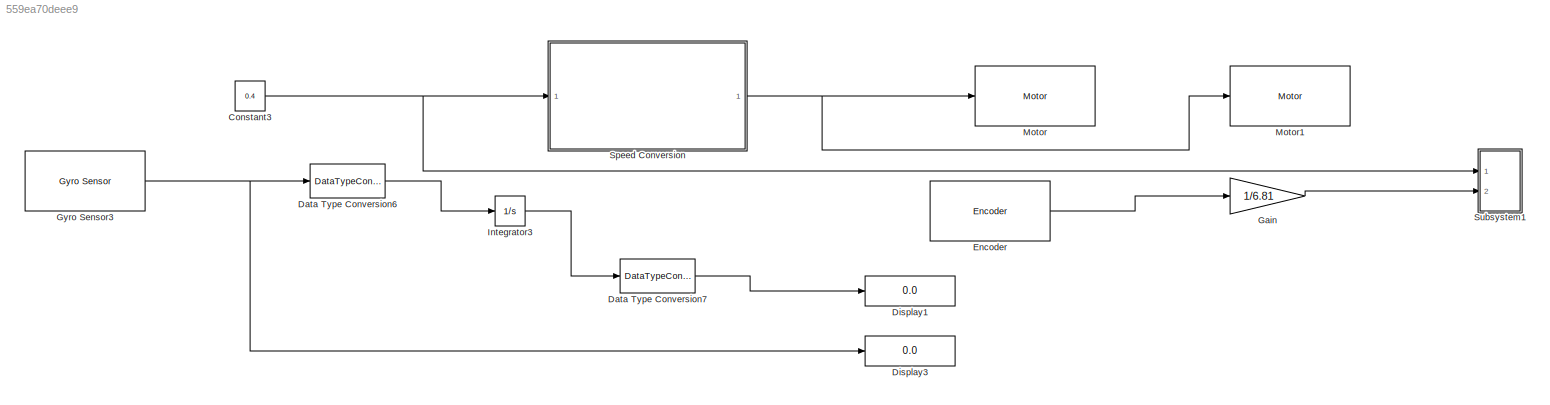
MODEL slx_559ea70deee9
KIND model
CONFIG AbsTol = auto
CONFIG FixedStep = auto
CONFIG MaxStep = auto
CONFIG MinStep = auto
CONFIG RelTol = 1e-3
CONFIG SampleTimeConstraint = Unconstrained
CONFIG Solver = FixedStepAuto
CONFIG SolverMode = Auto
CONFIG SolverName = FixedStepAuto
CONFIG StartTime = 0.0
CONFIG StopTime = 10
BLOCK [Constant] Constant3
  Value = 0.4
BLOCK [DataTypeConversion] Data Type Conversion6
  OutDataTypeStr = double
  RndMeth = Ceiling
  SaturateOnIntegerOverflow = off
BLOCK [DataTypeConversion] Data Type Conversion7
  OutDataTypeStr = int32
  RndMeth = Ceiling
  SaturateOnIntegerOverflow = off
BLOCK [Display] Display1
  Decimation = 1
  Format = long
  Ports = [1]
BLOCK [Display] Display3
  Decimation = 1
  Format = long
  Ports = [1]
BLOCK [Reference] Encoder  REF=legoev3lib/Encoder
  Ports = [0, 1]
  SourceBlock = legoev3lib/Encoder
  SourceType = LEGO MINDSTORMS EV3 Encoder
BLOCK [Gain] Gain
  Gain = 1/6.81
  OutDataTypeStr = Inherit: Inherit via internal rule
  ParamDataTypeStr = Inherit: Inherit via internal rule
  SaturateOnIntegerOverflow = off
BLOCK [Reference] Gyro Sensor3  REF=legoev3lib/Gyro Sensor
  Ports = [0, 1]
  SourceBlock = legoev3lib/Gyro Sensor
  SourceType = LEGO MINDSTORMS EV3 Gyro Sensor
BLOCK [Integrator] Integrator3
  Ports = [1, 1]
BLOCK [Reference] Motor  REF=legoev3lib/Motor
  Ports = [1]
  SourceBlock = legoev3lib/Motor
  SourceType = LEGO MINDSTORMS EV3 Motor
BLOCK [Reference] Motor1  REF=legoev3lib/Motor
  Ports = [1]
  SourceBlock = legoev3lib/Motor
  SourceType = LEGO MINDSTORMS EV3 Motor
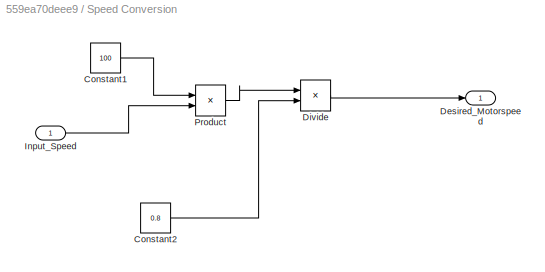
BLOCK [SubSystem] Speed Conversion
  Ports = [1, 1]
  RequestExecContextInheritance = off
  Variant = off
BLOCK [Constant] Speed Conversion/Constant1
  Value = 100
BLOCK [Constant] Speed Conversion/Constant2
  Value = 0.8
BLOCK [Outport] Speed Conversion/Desired_Motorspeed
  IconDisplay = Port number
BLOCK [Product] Speed Conversion/Divide
  InputSameDT = off
  Inputs = */
  OutDataTypeStr = Inherit: Inherit via internal rule
  Ports = [2, 1]
  RndMeth = Floor
  SaturateOnIntegerOverflow = off
BLOCK [Inport] Speed Conversion/Input_Speed
  IconDisplay = Port number
BLOCK [Product] Speed Conversion/Product
  InputSameDT = off
  OutDataTypeStr = Inherit: Inherit via internal rule
  Ports = [2, 1]
  RndMeth = Floor
  SaturateOnIntegerOverflow = off
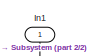
[diagram: Subsystem1 - part 1/2, top left region]
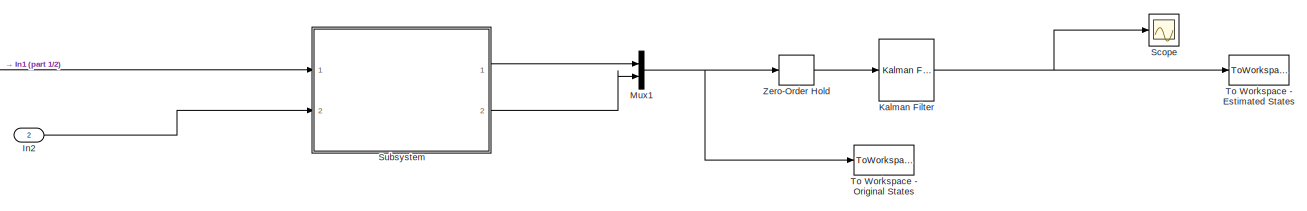
[diagram: Subsystem1 - part 2/2, full width, middle band]
BLOCK [SubSystem] Subsystem1
  Ports = [2]
  RequestExecContextInheritance = off
  Variant = off
BLOCK [Inport] Subsystem1/In1
  IconDisplay = Port number
BLOCK [Inport] Subsystem1/In2
  IconDisplay = Port number
  Port = 2
BLOCK [Reference] Subsystem1/Kalman Filter  REF=ctrlSharedLib/Kalman Filter
  Ports = [1, 1]
  SourceBlock = ctrlSharedLib/Kalman Filter
  SourceType = ctrlKalmanFilter
BLOCK [Mux] Subsystem1/Mux1
  DisplayOption = bar
  Inputs = 2
  Ports = [2, 1]
BLOCK [Scope] Subsystem1/Scope
  Ports = [1]
  ScopeSpecificationString = C++SS(StrPVP('SaveName','ScopeData'),StrPVP('LimitDataPoints','on'),StrPVP('DataFormat','Array'),StrPVP('Decimation','1'),StrPVP('BlockParamSampleInput','off'))
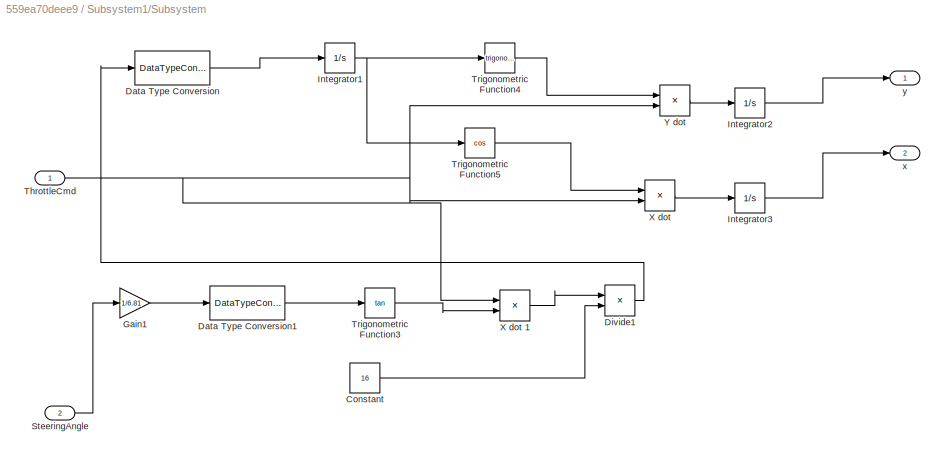
BLOCK [SubSystem] Subsystem1/Subsystem
  Ports = [2, 2]
  RequestExecContextInheritance = off
  Variant = off
BLOCK [Constant] Subsystem1/Subsystem/Constant
  Value = 16
BLOCK [DataTypeConversion] Subsystem1/Subsystem/Data Type Conversion
  OutDataTypeStr = double
  RndMeth = Floor
  SaturateOnIntegerOverflow = off
BLOCK [DataTypeConversion] Subsystem1/Subsystem/Data Type Conversion1
  OutDataTypeStr = double
  RndMeth = Floor
  SaturateOnIntegerOverflow = off
BLOCK [Product] Subsystem1/Subsystem/Divide1
  InputSameDT = off
  Inputs = */
  OutDataTypeStr = Inherit: Inherit via internal rule
  Ports = [2, 1]
  RndMeth = Floor
  SaturateOnIntegerOverflow = off
BLOCK [Gain] Subsystem1/Subsystem/Gain1
  Gain = 1/6.81
  OutDataTypeStr = Inherit: Inherit via internal rule
  ParamDataTypeStr = Inherit: Inherit via internal rule
  SaturateOnIntegerOverflow = off
BLOCK [Integrator] Subsystem1/Subsystem/Integrator1
  Ports = [1, 1]
BLOCK [Integrator] Subsystem1/Subsystem/Integrator2
  Ports = [1, 1]
BLOCK [Integrator] Subsystem1/Subsystem/Integrator3
  Ports = [1, 1]
BLOCK [Inport] Subsystem1/Subsystem/SteeringAngle
  IconDisplay = Port number
  Port = 2
BLOCK [Inport] Subsystem1/Subsystem/ThrottleCmd
  IconDisplay = Port number
BLOCK [Trigonometry] Subsystem1/Subsystem/Trigonometric Function3
  Operator = tan
  OutputSignalType = real
  Ports = [1, 1]
BLOCK [Trigonometry] Subsystem1/Subsystem/Trigonometric Function4
  Ports = [1, 1]
BLOCK [Trigonometry] Subsystem1/Subsystem/Trigonometric Function5
  Operator = cos
  Ports = [1, 1]
BLOCK [Product] Subsystem1/Subsystem/X dot 
  InputSameDT = off
  OutDataTypeStr = Inherit: Inherit via internal rule
  Ports = [2, 1]
  RndMeth = Floor
  SaturateOnIntegerOverflow = off
BLOCK [Product] Subsystem1/Subsystem/X dot 1
  InputSameDT = off
  OutDataTypeStr = Inherit: Inherit via internal rule
  Ports = [2, 1]
  RndMeth = Floor
  SaturateOnIntegerOverflow = off
BLOCK [Product] Subsystem1/Subsystem/Y dot 
  InputSameDT = off
  OutDataTypeStr = Inherit: Inherit via internal rule
  Ports = [2, 1]
  RndMeth = Floor
  SaturateOnIntegerOverflow = off
BLOCK [Outport] Subsystem1/Subsystem/x
  IconDisplay = Port number
  Port = 2
BLOCK [Outport] Subsystem1/Subsystem/y
  IconDisplay = Port number
BLOCK [ToWorkspace] Subsystem1/To Workspace - Estimated States
  FixptAsFi = on
  MaxDataPoints = inf
  Ports = [1]
  SampleTime = -1
  Save2DSignal = 2-D array (concatenate along first dimension)
  VariableName = xhat
BLOCK [ToWorkspace] Subsystem1/To Workspace - Original States 
  FixptAsFi = on
  MaxDataPoints = inf
  Ports = [1]
  SampleTime = -1
  Save2DSignal = 2-D array (concatenate along first dimension)
  VariableName = xhat1
BLOCK [ZeroOrderHold] Subsystem1/Zero-Order Hold
NET Constant3:1 -> Speed Conversion:1, Subsystem1:1
LINE Data Type Conversion6:1 -> Integrator3:1
LINE Data Type Conversion7:1 -> Display1:1
LINE Encoder:1 -> Gain:1
LINE Gain:1 -> Subsystem1:2
NET Gyro Sensor3:1 -> Data Type Conversion6:1, Display3:1
LINE Integrator3:1 -> Data Type Conversion7:1
LINE Speed Conversion/Constant1:1 -> Speed Conversion/Product:1
LINE Speed Conversion/Constant2:1 -> Speed Conversion/Divide:2
LINE Speed Conversion/Divide:1 -> Speed Conversion/Desired_Motorspeed:1
LINE Speed Conversion/Input_Speed:1 -> Speed Conversion/Product:2
LINE Speed Conversion/Product:1 -> Speed Conversion/Divide:1
NET Speed Conversion:1 -> Motor1:1, Motor:1
LINE Subsystem1/In1:1 -> Subsystem1/Subsystem:1
LINE Subsystem1/In2:1 -> Subsystem1/Subsystem:2
NET Subsystem1/Kalman Filter:1 -> Subsystem1/Scope:1, Subsystem1/To Workspace - Estimated States:1
NET Subsystem1/Mux1:1 -> Subsystem1/To Workspace - Original States :1, Subsystem1/Zero-Order Hold:1
LINE Subsystem1/Subsystem/Constant:1 -> Subsystem1/Subsystem/Divide1:2
LINE Subsystem1/Subsystem/Data Type Conversion1:1 -> Subsystem1/Subsystem/Trigonometric Function3:1
LINE Subsystem1/Subsystem/Data Type Conversion:1 -> Subsystem1/Subsystem/Integrator1:1
LINE Subsystem1/Subsystem/Divide1:1 -> Subsystem1/Subsystem/Data Type Conversion:1
LINE Subsystem1/Subsystem/Gain1:1 -> Subsystem1/Subsystem/Data Type Conversion1:1
NET Subsystem1/Subsystem/Integrator1:1 -> Subsystem1/Subsystem/Trigonometric Function4:1, Subsystem1/Subsystem/Trigonometric Function5:1
LINE Subsystem1/Subsystem/Integrator2:1 -> Subsystem1/Subsystem/y:1
LINE Subsystem1/Subsystem/Integrator3:1 -> Subsystem1/Subsystem/x:1
LINE Subsystem1/Subsystem/SteeringAngle:1 -> Subsystem1/Subsystem/Gain1:1
NET Subsystem1/Subsystem/ThrottleCmd:1 -> Subsystem1/Subsystem/X dot 1:1, Subsystem1/Subsystem/X dot :2, Subsystem1/Subsystem/Y dot :2
LINE Subsystem1/Subsystem/Trigonometric Function3:1 -> Subsystem1/Subsystem/X dot 1:2
LINE Subsystem1/Subsystem/Trigonometric Function4:1 -> Subsystem1/Subsystem/Y dot :1
LINE Subsystem1/Subsystem/Trigonometric Function5:1 -> Subsystem1/Subsystem/X dot :1
LINE Subsystem1/Subsystem/X dot 1:1 -> Subsystem1/Subsystem/Divide1:1
LINE Subsystem1/Subsystem/X dot :1 -> Subsystem1/Subsystem/Integrator3:1
LINE Subsystem1/Subsystem/Y dot :1 -> Subsystem1/Subsystem/Integrator2:1
LINE Subsystem1/Subsystem:1 -> Subsystem1/Mux1:1
LINE Subsystem1/Subsystem:2 -> Subsystem1/Mux1:2
LINE Subsystem1/Zero-Order Hold:1 -> Subsystem1/Kalman Filter:1
note: NET lines group one-source signal fan-out (src -> all destinations, sorted); 1:1 wires keep LINE
